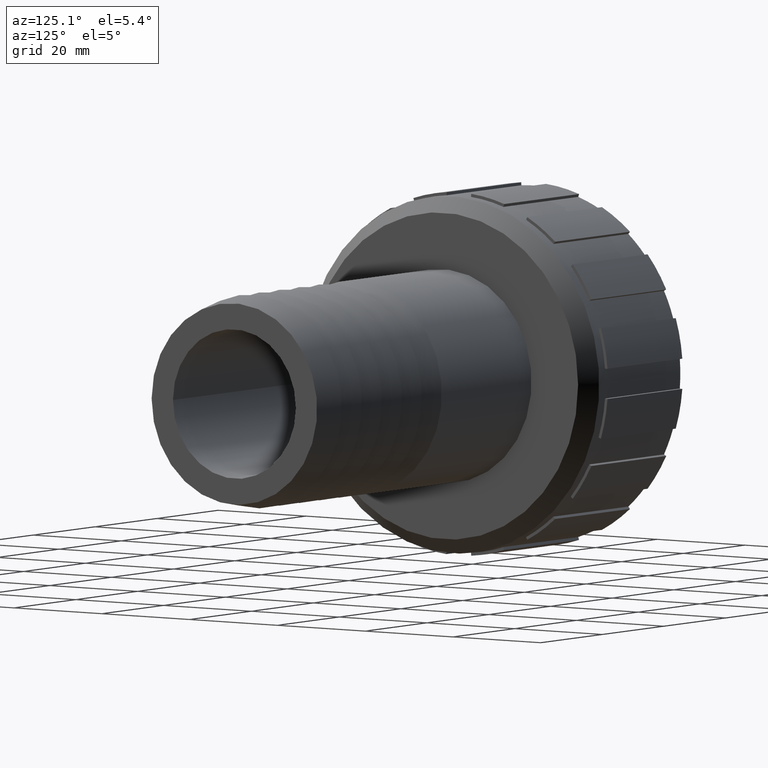
[diagram: clean part render]
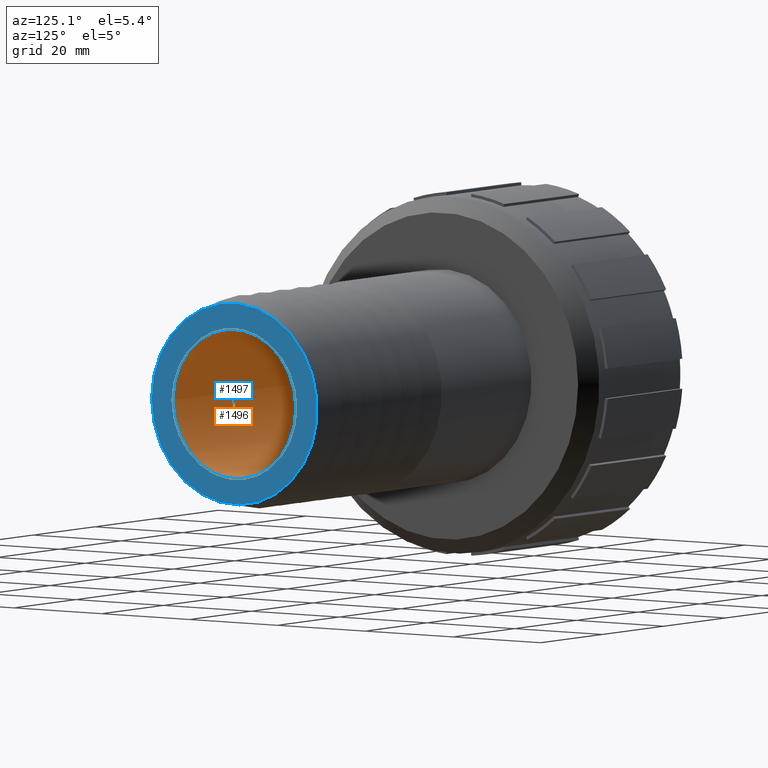
[diagram: same view with the hole feature highlighted: cylindrical wall and planar end face, labeled with their STEP entity ids]
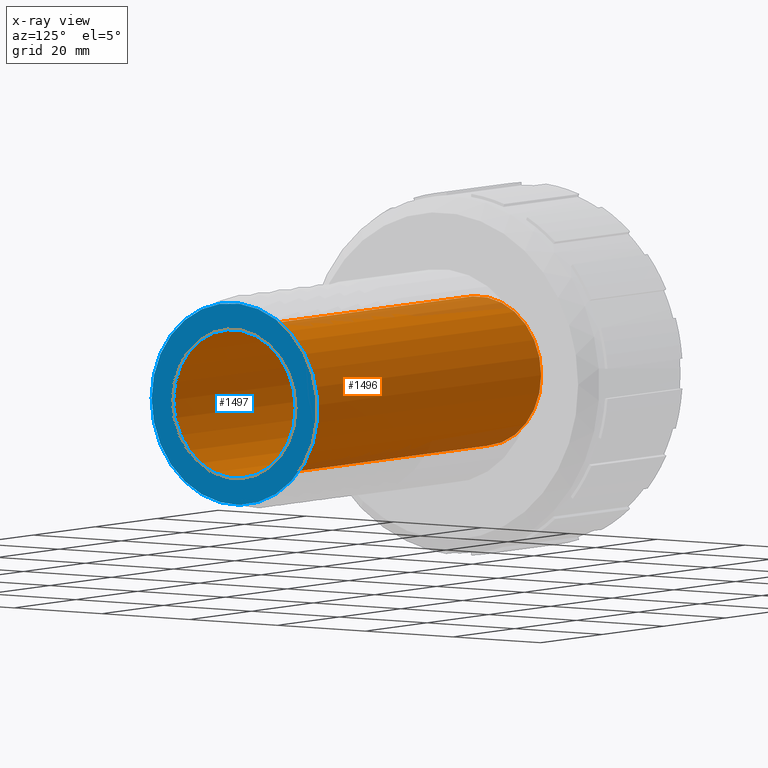
[diagram: x-ray of the same camera — body ghosted, the hole faces saturated]
A machine part, auxiliary view. The highlighted faces form one hole feature of diameter 28 mm: the cylindrical wall (entity #1496, orange) and its adjacent planar end face (entity #1497, blue) — they share a circular edge in the B-rep.
The next image is the same camera in x-ray (body ghosted, the hole faces saturated) — the bore reads through the body.
Wall:
#40=CYLINDRICAL_SURFACE('',#1652,14.);
#48=FACE_BOUND('',#306,.T.);
#131=CIRCLE('',#1651,14.);
#132=CIRCLE('',#1653,14.);
#215=FACE_OUTER_BOUND('',#305,.T.);
#305=EDGE_LOOP('',(#1341));
#306=EDGE_LOOP('',(#1342));
#722=VERTEX_POINT('',#2544);
#723=VERTEX_POINT('',#2547);
#933=EDGE_CURVE('',#722,#722,#131,.T.);
#934=EDGE_CURVE('',#723,#723,#132,.T.);
#1341=ORIENTED_EDGE('',*,*,#933,.T.);
#1342=ORIENTED_EDGE('',*,*,#934,.F.);
#1496=ADVANCED_FACE('',(#215,#48),#40,.F.);
#1651=AXIS2_PLACEMENT_3D('',#2545,#2087,#2088);
#1652=AXIS2_PLACEMENT_3D('',#2546,#2089,#2090);
#1653=AXIS2_PLACEMENT_3D('',#2548,#2091,#2092);
#2087=DIRECTION('center_axis',(-1.,0.,0.));
#2088=DIRECTION('ref_axis',(0.,0.,1.));
#2089=DIRECTION('center_axis',(-1.,0.,0.));
#2090=DIRECTION('ref_axis',(0.,-1.,0.));
#2091=DIRECTION('center_axis',(-1.,0.,0.));
#2092=DIRECTION('ref_axis',(0.,0.,1.));
#2544=CARTESIAN_POINT('',(17.46,-14.,0.));
#2545=CARTESIAN_POINT('Origin',(17.46,0.,0.));
#2546=CARTESIAN_POINT('Origin',(57.23,0.,0.));
#2547=CARTESIAN_POINT('',(97.,-14.,0.));
#2548=CARTESIAN_POINT('Origin',(97.,0.,0.));
End face:
#49=FACE_BOUND('',#308,.T.);
#132=CIRCLE('',#1653,14.);
#133=CIRCLE('',#1655,18.8597521914186);
#216=FACE_OUTER_BOUND('',#307,.T.);
#307=EDGE_LOOP('',(#1343));
#308=EDGE_LOOP('',(#1344));
#723=VERTEX_POINT('',#2547);
#724=VERTEX_POINT('',#2550);
#934=EDGE_CURVE('',#723,#723,#132,.T.);
#935=EDGE_CURVE('',#724,#724,#133,.T.);
#1343=ORIENTED_EDGE('',*,*,#935,.F.);
#1344=ORIENTED_EDGE('',*,*,#934,.T.);
#1420=PLANE('',#1654);
#1497=ADVANCED_FACE('',(#216,#49),#1420,.T.);
#1653=AXIS2_PLACEMENT_3D('',#2548,#2091,#2092);
#1654=AXIS2_PLACEMENT_3D('',#2549,#2093,#2094);
#1655=AXIS2_PLACEMENT_3D('',#2551,#2095,#2096);
#2091=DIRECTION('center_axis',(-1.,0.,0.));
#2092=DIRECTION('ref_axis',(0.,0.,1.));
#2093=DIRECTION('center_axis',(1.,0.,0.));
#2094=DIRECTION('ref_axis',(0.,0.,-1.));
#2095=DIRECTION('center_axis',(-1.,0.,0.));
#2096=DIRECTION('ref_axis',(0.,0.,1.));
#2547=CARTESIAN_POINT('',(97.,-14.,0.));
#2548=CARTESIAN_POINT('Origin',(97.,0.,0.));
#2549=CARTESIAN_POINT('Origin',(97.,-18.8597521914186,0.));
#2550=CARTESIAN_POINT('',(97.,-18.8597521914186,0.));
#2551=CARTESIAN_POINT('Origin',(97.,0.,0.));